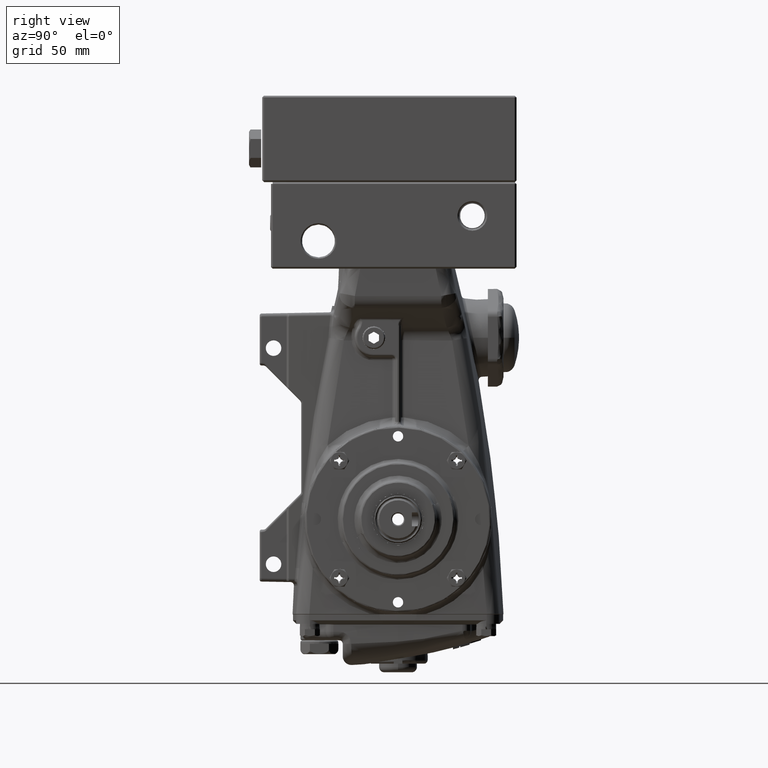
[diagram: clean part render]
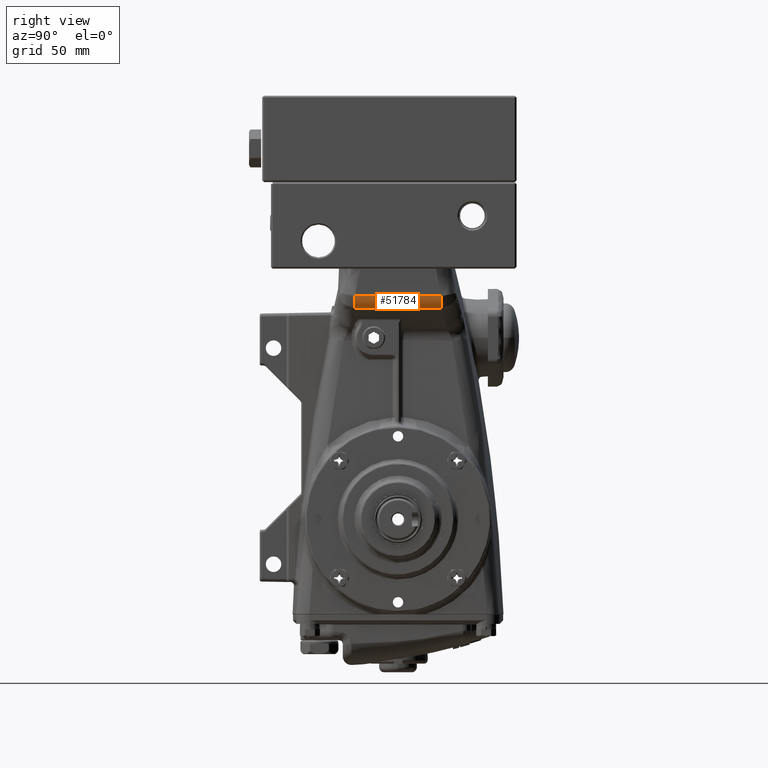
[diagram: same view with one face highlighted and labeled with its STEP entity id]
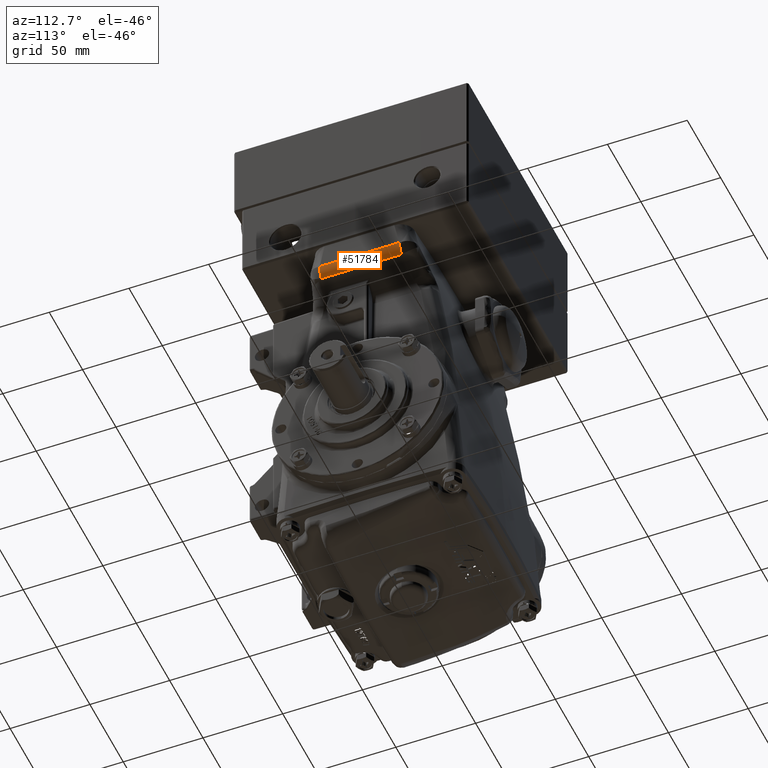
[diagram: same view with one face highlighted and labeled with its STEP entity id]
A machine part, right view. The second image highlights one B-rep face of the part: STEP entity #51784.
A second angle (auxiliary view) of the same face is appended — the face is thin or edge-on in the first view.
In plain terms, the highlighted cylindrical surface (edge-blend (fillet) strip) has radius 10 mm, axis along (0, -1, 0).
Its self-contained STEP definition (entity closure, byte-faithful):
#504 = CARTESIAN_POINT ( 'NONE',  ( 2.913385826771653697, 0.9834473297469021880, 5.058340046388537736 ) ) ;
#1534 = EDGE_CURVE ( 'NONE', #66925, #46877, #57026, .T. ) ;
#6591 = CARTESIAN_POINT ( 'NONE',  ( 2.910780906744217855, -0.9839692213892905492, 5.032338680372752115 ) ) ;
#7534 = CARTESIAN_POINT ( 'NONE',  ( 2.861490739287959162, 0.9871554177523154117, 4.887286411515544771 ) ) ;
#7986 = CARTESIAN_POINT ( 'NONE',  ( 2.798073535900214015, 0.9892250966871176665, 4.805947551648249494 ) ) ;
#12635 = VERTEX_POINT ( 'NONE', #38674 ) ;
#13138 = CARTESIAN_POINT ( 'NONE',  ( 2.832721155114370060, -0.9882133858767664369, 4.844200615338542626 ) ) ;
#14432 = CARTESIAN_POINT ( 'NONE',  ( 2.913385826771653697, -0.9829455507890978438, 5.084336048178387024 ) ) ;
#14909 = DIRECTION ( 'NONE',  ( 1.205930715584620354E-16, -1.000000000000000000, 1.760395930526565455E-16 ) ) ;
#15130 = ORIENTED_EDGE ( 'NONE', *, *, #65631, .T. ) ;
#15385 = CARTESIAN_POINT ( 'NONE',  ( 2.832999298529579768, 0.9882044495731694411, 4.844557252592447405 ) ) ;
#19275 = CARTESIAN_POINT ( 'NONE',  ( 2.878454446492454188, -0.9863578283988992945, 4.921697356872175355 ) ) ;
#21222 = CARTESIAN_POINT ( 'NONE',  ( 2.913385826771652809, 0.9829457076827601281, 5.084336048178387024 ) ) ;
#24509 = ORIENTED_EDGE ( 'NONE', *, *, #83188, .T. ) ;
#26901 = EDGE_CURVE ( 'NONE', #12635, #38730, #81783, .T. ) ;
#27195 = CARTESIAN_POINT ( 'NONE',  ( 2.913385826771652809, 0.9829457076827601281, 5.084336048178387024 ) ) ;
#27539 = CARTESIAN_POINT ( 'NONE',  ( 2.798073535900214903, -0.9892249654945769466, 4.805947551648249494 ) ) ;
#31005 = B_SPLINE_CURVE_WITH_KNOTS ( 'NONE', 3,
 ( #7986, #33709, #15385, #7534, #80101, #34586, #40286, #66950, #60429, #61297, #504, #27195 ),
 .UNSPECIFIED., .F., .F.,
 ( 4, 2, 2, 2, 2, 4 ),
 ( 0.000000000000000000, 0.001978921231163227254, 0.003957842462326454508, 0.004947303077908029971, 0.005936763693489605434, 0.007915684924652846566 ),
 .UNSPECIFIED. ) ;
#32901 = VECTOR ( 'NONE', #14909, 39.37007874015748143 ) ;
#33709 = CARTESIAN_POINT ( 'NONE',  ( 2.816455503468287880, 0.9887252749211842273, 4.824329519216321138 ) ) ;
#34586 = CARTESIAN_POINT ( 'NONE',  ( 2.888376207885356539, 0.9858177984326920162, 4.945650594263598876 ) ) ;
#38159 = DIRECTION ( 'NONE',  ( -1.205930715584620354E-16, 1.000000000000000000, -1.760395930526565455E-16 ) ) ;
#38440 = EDGE_LOOP ( 'NONE', ( #38796, #15130, #57155, #24509 ) ) ;
#38621 = CARTESIAN_POINT ( 'NONE',  ( 2.519685039370078261, -2.265344068576856884, 5.084336048178387024 ) ) ;
#38674 = CARTESIAN_POINT ( 'NONE',  ( 2.798073535900214015, 0.9892250966871176665, 4.805947551648249494 ) ) ;
#38730 = VERTEX_POINT ( 'NONE', #39395 ) ;
#38796 = ORIENTED_EDGE ( 'NONE', *, *, #1534, .F. ) ;
#38825 = CARTESIAN_POINT ( 'NONE',  ( 2.913385826771653697, -0.9829455507890978438, 5.084336048178387024 ) ) ;
#39395 = CARTESIAN_POINT ( 'NONE',  ( 2.798073535900214903, -0.9892249654945769466, 4.805947551648249494 ) ) ;
#40286 = CARTESIAN_POINT ( 'NONE',  ( 2.892768390448158033, 0.9855461438908920124, 4.957941567660243187 ) ) ;
#42344 = B_SPLINE_CURVE_WITH_KNOTS ( 'NONE', 3,
 ( #14432, #60775, #6591, #66860, #72578, #19275, #66023, #53752, #73879, #13138, #79574, #27539 ),
 .UNSPECIFIED., .F., .F.,
 ( 4, 2, 2, 2, 2, 4 ),
 ( 0.000000000000000000, 0.001978910661871554916, 0.003957821323743109833, 0.004947276654678879268, 0.005936731985614648703, 0.007915642647486247421 ),
 .UNSPECIFIED. ) ;
#42371 = CARTESIAN_POINT ( 'NONE',  ( 2.798073535900214903, -1.344122906736058276, 4.805947551648249494 ) ) ;
#44725 = CARTESIAN_POINT ( 'NONE',  ( 2.913385826771652809, 1.344122906570455633, 5.084336048178387024 ) ) ;
#46877 = VERTEX_POINT ( 'NONE', #21222 ) ;
#51784 = ADVANCED_FACE ( 'NONE', ( #77572 ), #70560, .T. ) ;
#51854 = AXIS2_PLACEMENT_3D ( 'NONE', #38621, #58333, #84142 ) ;
#53752 = CARTESIAN_POINT ( 'NONE',  ( 2.860691549386864097, -0.9871641833281400435, 4.887152600827043614 ) ) ;
#57026 = LINE ( 'NONE', #44725, #72799 ) ;
#57155 = ORIENTED_EDGE ( 'NONE', *, *, #26901, .F. ) ;
#58333 = DIRECTION ( 'NONE',  ( 1.205930715584620354E-16, -1.000000000000000000, 1.760395930526565455E-16 ) ) ;
#60429 = CARTESIAN_POINT ( 'NONE',  ( 2.903352112568339027, 0.9847462157506651215, 4.995094978778300110 ) ) ;
#60775 = CARTESIAN_POINT ( 'NONE',  ( 2.913385826771653697, -0.9834471712402294008, 5.058340137365140876 ) ) ;
#61297 = CARTESIAN_POINT ( 'NONE',  ( 2.910836383527851901, 0.9839602852512898679, 5.032787410383875226 ) ) ;
#65631 = EDGE_CURVE ( 'NONE', #66925, #38730, #42344, .T. ) ;
#66023 = CARTESIAN_POINT ( 'NONE',  ( 2.872869176078769460, -0.9866293865923249085, 4.909900623563646427 ) ) ;
#66860 = CARTESIAN_POINT ( 'NONE',  ( 2.900713246999228723, -0.9850198395601805768, 4.981977810958503561 ) ) ;
#66925 = VERTEX_POINT ( 'NONE', #38825 ) ;
#66950 = CARTESIAN_POINT ( 'NONE',  ( 2.900242788228922564, 0.9850109617872866430, 4.982637713184201012 ) ) ;
#70560 = CYLINDRICAL_SURFACE ( 'NONE', #51854, 0.3937007874015746034 ) ;
#72578 = CARTESIAN_POINT ( 'NONE',  ( 2.893274623244299182, -0.9855512501163694594, 4.957461234264127548 ) ) ;
#72799 = VECTOR ( 'NONE', #38159, 39.37007874015748143 ) ;
#73879 = CARTESIAN_POINT ( 'NONE',  ( 2.854081552741826400, -0.9874286398812447407, 4.876145358397009133 ) ) ;
#77572 = FACE_OUTER_BOUND ( 'NONE', #38440, .T. ) ;
#79574 = CARTESIAN_POINT ( 'NONE',  ( 2.816455452677616655, -0.9887251408938796393, 4.824329468425652578 ) ) ;
#80101 = CARTESIAN_POINT ( 'NONE',  ( 2.873566695379806024, 0.9866243779519406898, 4.909882114394137353 ) ) ;
#81783 = LINE ( 'NONE', #42371, #32901 ) ;
#83188 = EDGE_CURVE ( 'NONE', #12635, #46877, #31005, .T. ) ;
#84142 = DIRECTION ( 'NONE',  ( 1.000000000000000000, 0.000000000000000000, 0.000000000000000000 ) ) ;